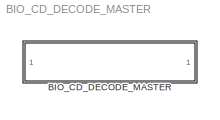
MODEL BIO_CD_DECODE_MASTER
KIND library
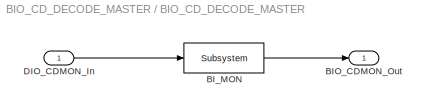
BLOCK [SubSystem] BIO_CD_DECODE_MASTER
  Ports = [1, 1]
  RequestExecContextInheritance = off
  SID = 1
BLOCK [Outport] BIO_CD_DECODE_MASTER/BIO_CDMON_Out
  IconDisplay = Port number
  SID = 4
BLOCK [Reference] BIO_CD_DECODE_MASTER/BI_MON  REF=cdsEpicsOut/Subsystem
  AttributesFormatString = %<Tag>
  Description = Purpose:                                          \nOutput a FE signal to an EPICS channel.           \n                                                  \nOperation:                                        \nTakes input value and passes it to EPICS record.  \n                                                  \nUsage:                                            \nName the part with the desired EPICS...<+14ch>
  Ports = [1, 1]
  SID = 3
  SourceBlock = cdsEpicsOut/Subsystem
  SourceType = SubSystem
  Tag = cdsEpicsOutput
BLOCK [Inport] BIO_CD_DECODE_MASTER/DIO_CDMON_In
  IconDisplay = Port number
  SID = 2
LINE BIO_CD_DECODE_MASTER/BI_MON:1 -> BIO_CD_DECODE_MASTER/BIO_CDMON_Out:1
LINE BIO_CD_DECODE_MASTER/DIO_CDMON_In:1 -> BIO_CD_DECODE_MASTER/BI_MON:1
